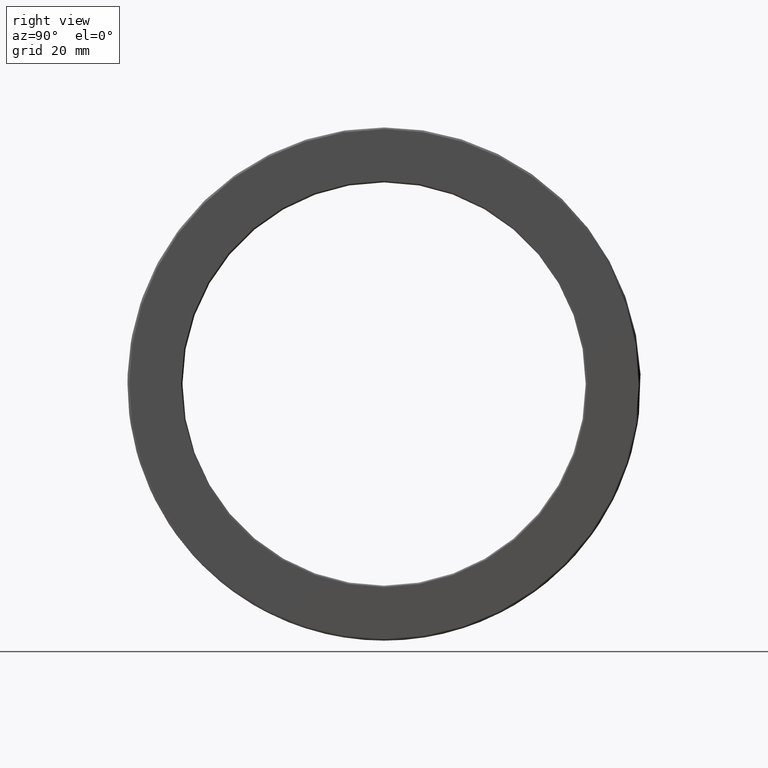
[diagram: clean part render]
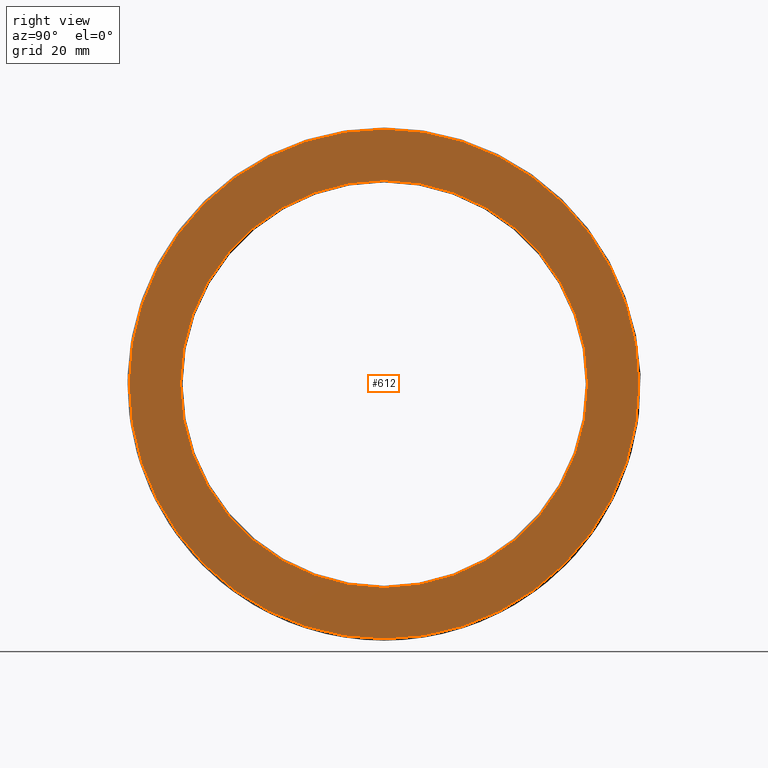
[diagram: same view with one face highlighted and labeled with its STEP entity id]
A machine part, right view. The second image highlights one B-rep face of the part: STEP entity #612.
In plain terms, the highlighted planar face has unit normal (1, 0, 0).
Its self-contained STEP definition (entity closure, byte-faithful):
#16 = AXIS2_PLACEMENT_3D ( 'NONE', #214, #541, #587 ) ;
#27 = EDGE_LOOP ( 'NONE', ( #236 ) ) ;
#64 = CARTESIAN_POINT ( 'NONE',  ( 0.4920000000000003300, 0.0000000000000000000, 0.0000000000000000000 ) ) ;
#91 = CARTESIAN_POINT ( 'NONE',  ( 0.4920000000000003300, 0.0000000000000000000, 0.0000000000000000000 ) ) ;
#101 = DIRECTION ( 'NONE',  ( 1.000000000000000000, 0.0000000000000000000, 0.0000000000000000000 ) ) ;
#128 = EDGE_CURVE ( 'NONE', #215, #215, #325, .T. ) ;
#214 = CARTESIAN_POINT ( 'NONE',  ( 0.4920000000000003300, 0.0000000000000000000, 0.0000000000000000000 ) ) ;
#215 = VERTEX_POINT ( 'NONE', #555 ) ;
#236 = ORIENTED_EDGE ( 'NONE', *, *, #128, .T. ) ;
#263 = ORIENTED_EDGE ( 'NONE', *, *, #343, .F. ) ;
#287 = PLANE ( 'NONE',  #353 ) ;
#310 = CARTESIAN_POINT ( 'NONE',  ( 0.4920000000000003300, 0.0000000000000000000, 2.735999999999999300 ) ) ;
#325 = CIRCLE ( 'NONE', #16, 2.185499999999999800 ) ;
#343 = EDGE_CURVE ( 'NONE', #677, #677, #372, .T. ) ;
#348 = DIRECTION ( 'NONE',  ( 0.0000000000000000000, 0.0000000000000000000, -1.000000000000000000 ) ) ;
#353 = AXIS2_PLACEMENT_3D ( 'NONE', #91, #101, #348 ) ;
#372 = CIRCLE ( 'NONE', #383, 2.735999999999999300 ) ;
#383 = AXIS2_PLACEMENT_3D ( 'NONE', #64, #393, #636 ) ;
#393 = DIRECTION ( 'NONE',  ( -1.000000000000000000, -0.0000000000000000000, -0.0000000000000000000 ) ) ;
#541 = DIRECTION ( 'NONE',  ( -1.000000000000000000, -0.0000000000000000000, -0.0000000000000000000 ) ) ;
#555 = CARTESIAN_POINT ( 'NONE',  ( 0.4920000000000003300, 0.0000000000000000000, 2.185499999999999800 ) ) ;
#587 = DIRECTION ( 'NONE',  ( 0.0000000000000000000, 0.0000000000000000000, 1.000000000000000000 ) ) ;
#612 = ADVANCED_FACE ( 'NONE', ( #710, #773 ), #287, .T. ) ;
#636 = DIRECTION ( 'NONE',  ( 0.0000000000000000000, 0.0000000000000000000, 1.000000000000000000 ) ) ;
#677 = VERTEX_POINT ( 'NONE', #310 ) ;
#710 = FACE_BOUND ( 'NONE', #27, .T. ) ;
#773 = FACE_OUTER_BOUND ( 'NONE', #795, .T. ) ;
#795 = EDGE_LOOP ( 'NONE', ( #263 ) ) ;